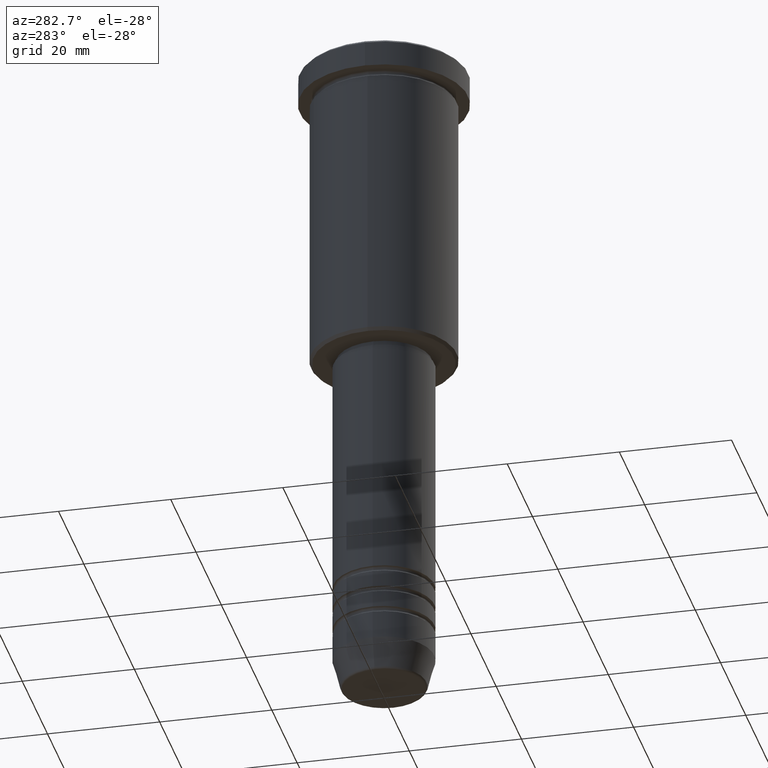
[diagram: clean part render]
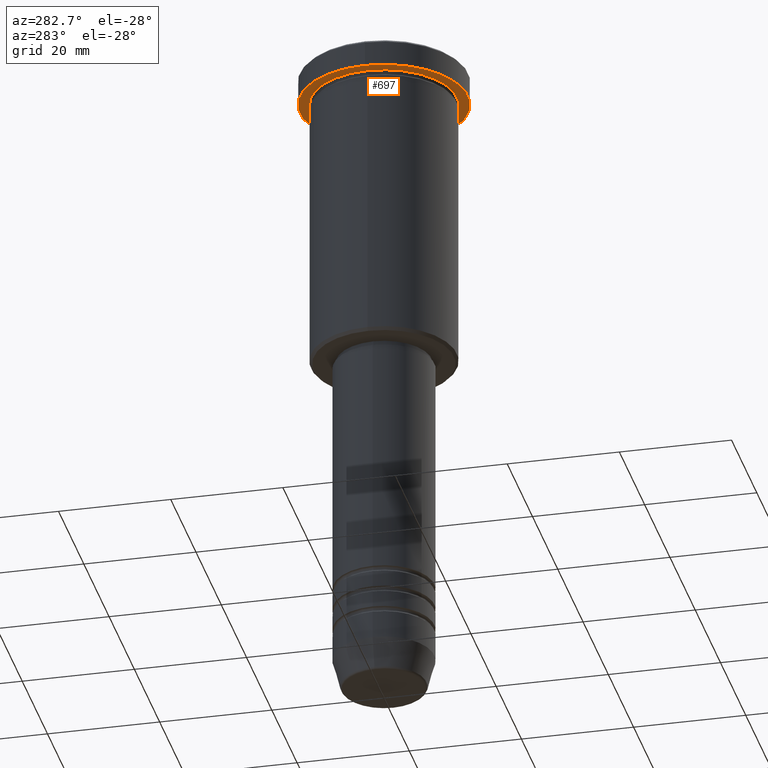
[diagram: same view with one face highlighted and labeled with its STEP entity id]
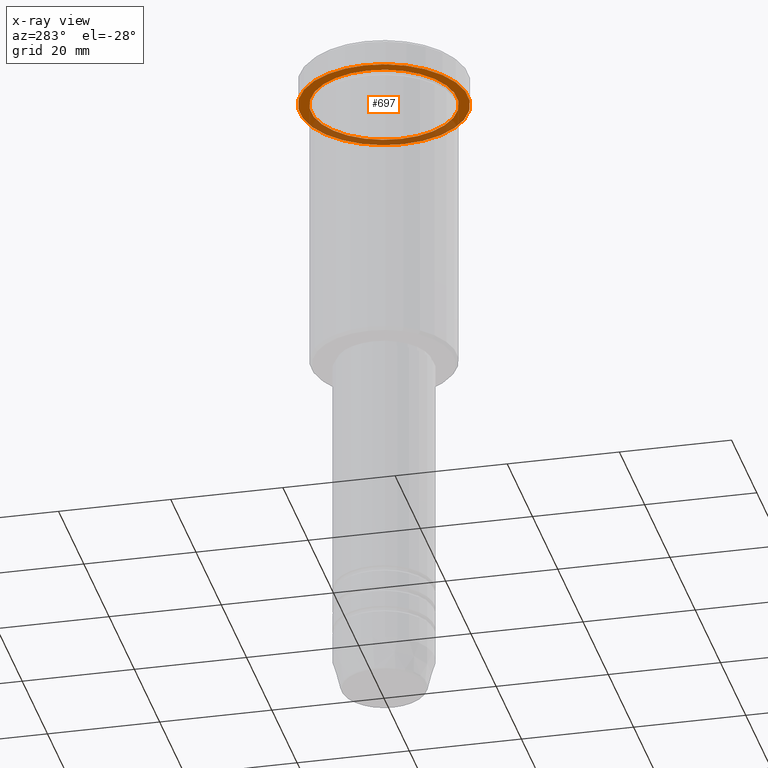
[diagram: x-ray of the same camera — body ghosted, the highlighted face saturated]
A machine part, auxiliary view. The second image highlights one B-rep face of the part: STEP entity #697.
The next image is the same camera in x-ray: the body ghosted, the highlighted face saturated — about 34% of this face is hidden behind the body in this view.
In plain terms, the highlighted planar face has unit normal (0, 0, -1).
Its self-contained STEP definition (entity closure, byte-faithful):
#3 = DIRECTION ( 'NONE',  ( -0.000000000000000000, -0.000000000000000000, 1.000000000000000000 ) ) ;
#61 = CARTESIAN_POINT ( 'NONE',  ( 15.00000000000000000, 0.000000000000000000, -4.999999999999999112 ) ) ;
#86 = DIRECTION ( 'NONE',  ( -0.000000000000000000, -0.000000000000000000, 1.000000000000000000 ) ) ;
#196 = DIRECTION ( 'NONE',  ( -1.000000000000000000, 0.000000000000000000, 0.000000000000000000 ) ) ;
#220 = VERTEX_POINT ( 'NONE', #61 ) ;
#228 = AXIS2_PLACEMENT_3D ( 'NONE', #284, #3, #196 ) ;
#253 = DIRECTION ( 'NONE',  ( -0.000000000000000000, -0.000000000000000000, 1.000000000000000000 ) ) ;
#284 = CARTESIAN_POINT ( 'NONE',  ( 0.000000000000000000, 0.000000000000000000, -4.999999999999999112 ) ) ;
#286 = FACE_BOUND ( 'NONE', #904, .T. ) ;
#318 = AXIS2_PLACEMENT_3D ( 'NONE', #1069, #253, #614 ) ;
#368 = CARTESIAN_POINT ( 'NONE',  ( 0.000000000000000000, 0.000000000000000000, -4.999999999999999112 ) ) ;
#420 = ORIENTED_EDGE ( 'NONE', *, *, #636, .F. ) ;
#460 = DIRECTION ( 'NONE',  ( -1.000000000000000000, 0.000000000000000000, -0.000000000000000000 ) ) ;
#462 = CARTESIAN_POINT ( 'NONE',  ( 0.000000000000000000, 0.000000000000000000, -4.999999999999999112 ) ) ;
#496 = CIRCLE ( 'NONE', #625, 13.00000000000000000 ) ;
#567 = PLANE ( 'NONE',  #1062 ) ;
#586 = CIRCLE ( 'NONE', #1154, 15.00000000000000000 ) ;
#614 = DIRECTION ( 'NONE',  ( 1.000000000000000000, 0.000000000000000000, 0.000000000000000000 ) ) ;
#625 = AXIS2_PLACEMENT_3D ( 'NONE', #462, #86, #892 ) ;
#627 = VERTEX_POINT ( 'NONE', #964 ) ;
#636 = EDGE_CURVE ( 'NONE', #802, #220, #846, .T. ) ;
#652 = CARTESIAN_POINT ( 'NONE',  ( 0.000000000000000000, 15.00000000000000000, -4.999999999999999112 ) ) ;
#658 = DIRECTION ( 'NONE',  ( 1.000000000000000000, 0.000000000000000000, 0.000000000000000000 ) ) ;
#697 = ADVANCED_FACE ( 'NONE', ( #286, #1180 ), #567, .T. ) ;
#717 = ORIENTED_EDGE ( 'NONE', *, *, #1013, .T. ) ;
#743 = DIRECTION ( 'NONE',  ( -0.000000000000000000, -0.000000000000000000, 1.000000000000000000 ) ) ;
#782 = EDGE_CURVE ( 'NONE', #220, #802, #586, .T. ) ;
#802 = VERTEX_POINT ( 'NONE', #1124 ) ;
#821 = VERTEX_POINT ( 'NONE', #1129 ) ;
#830 = DIRECTION ( 'NONE',  ( 0.000000000000000000, 0.000000000000000000, -1.000000000000000000 ) ) ;
#846 = CIRCLE ( 'NONE', #318, 15.00000000000000000 ) ;
#892 = DIRECTION ( 'NONE',  ( -1.000000000000000000, 0.000000000000000000, 0.000000000000000000 ) ) ;
#904 = EDGE_LOOP ( 'NONE', ( #940, #717 ) ) ;
#940 = ORIENTED_EDGE ( 'NONE', *, *, #1168, .T. ) ;
#964 = CARTESIAN_POINT ( 'NONE',  ( -13.00000000000000000, 0.000000000000000000, -4.999999999999999112 ) ) ;
#977 = EDGE_LOOP ( 'NONE', ( #1111, #420 ) ) ;
#1013 = EDGE_CURVE ( 'NONE', #821, #627, #496, .T. ) ;
#1062 = AXIS2_PLACEMENT_3D ( 'NONE', #652, #830, #460 ) ;
#1063 = CIRCLE ( 'NONE', #228, 13.00000000000000000 ) ;
#1069 = CARTESIAN_POINT ( 'NONE',  ( 0.000000000000000000, 0.000000000000000000, -4.999999999999999112 ) ) ;
#1111 = ORIENTED_EDGE ( 'NONE', *, *, #782, .F. ) ;
#1124 = CARTESIAN_POINT ( 'NONE',  ( -15.00000000000000000, 1.836970198721029589E-15, -4.999999999999999112 ) ) ;
#1129 = CARTESIAN_POINT ( 'NONE',  ( 13.00000000000000000, 1.592040838891559095E-15, -4.999999999999999112 ) ) ;
#1154 = AXIS2_PLACEMENT_3D ( 'NONE', #368, #743, #658 ) ;
#1168 = EDGE_CURVE ( 'NONE', #627, #821, #1063, .T. ) ;
#1180 = FACE_OUTER_BOUND ( 'NONE', #977, .T. ) ;